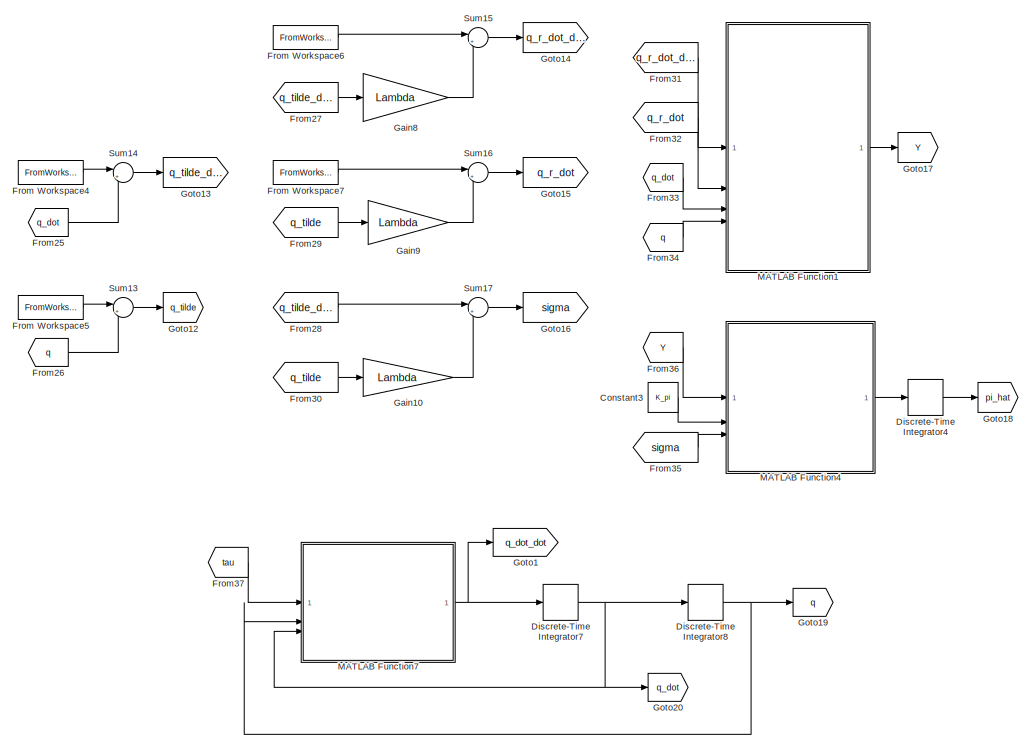
[diagram: root canvas - part 1/2, left side, full height]
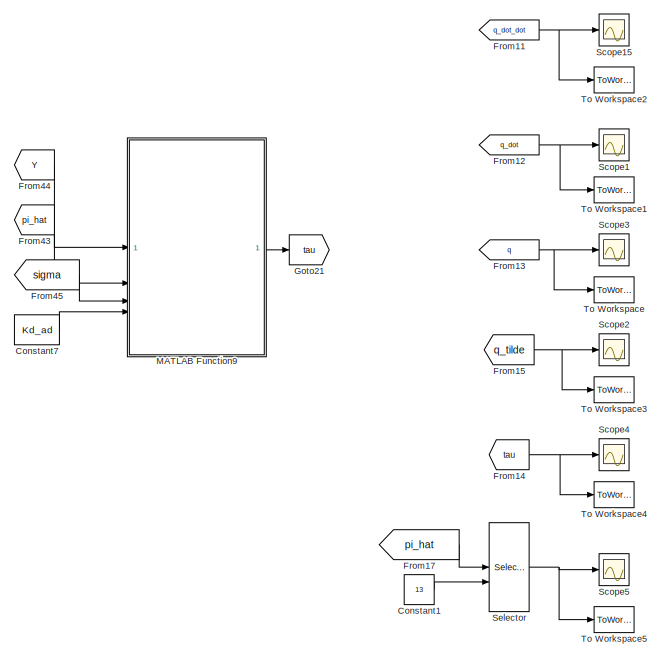
[diagram: root canvas - part 2/2, right side, full height]
MODEL slx_b1fc7efd4234
KIND model
CONFIG AbsTol = auto
CONFIG EnableMultiTasking = off
CONFIG FixedStep = auto
CONFIG MaxStep = auto
CONFIG MinStep = auto
CONFIG RelTol = 1e-3
CONFIG SampleTimeConstraint = Unconstrained
CONFIG SolverName = VariableStepAuto
CONFIG StartTime = 0.0
CONFIG StopTime = 40
BLOCK [Constant] Constant1
  Value = 13
BLOCK [Constant] Constant3
  SampleTime = T
  Value = K_pi
BLOCK [Constant] Constant7
  SampleTime = T
  Value = Kd_ad
BLOCK [DiscreteIntegrator] Discrete-Time Integrator4
  ICPrevOutput = DiscIntNeverNeededParam
  ICPrevScaledInput = DiscIntNeverNeededParam
  InitialCondition = pi_0
  InitialConditionSetting = Auto
  SampleTime = T
BLOCK [DiscreteIntegrator] Discrete-Time Integrator7
  ICPrevOutput = DiscIntNeverNeededParam
  ICPrevScaledInput = DiscIntNeverNeededParam
  InitialCondition = [0 0 0 0]'
  InitialConditionSetting = Auto
  SampleTime = -1
BLOCK [DiscreteIntegrator] Discrete-Time Integrator8
  ICPrevOutput = DiscIntNeverNeededParam
  ICPrevScaledInput = DiscIntNeverNeededParam
  InitialCondition = [theta1_0 theta2_0 -0.25 0]'
  InitialConditionSetting = Auto
  SampleTime = -1
BLOCK [FromWorkspace] From Workspace4
  SampleTime = T
  VariableName = q_d_dot
BLOCK [FromWorkspace] From Workspace5
  SampleTime = T
  VariableName = q_d
BLOCK [FromWorkspace] From Workspace6
  SampleTime = T
  VariableName = q_d_dot_dot
BLOCK [FromWorkspace] From Workspace7
  SampleTime = T
  VariableName = q_d_dot
BLOCK [From] From11
  GotoTag = q_dot_dot
BLOCK [From] From12
  GotoTag = q_dot
BLOCK [From] From13
  GotoTag = q
BLOCK [From] From14
  GotoTag = tau
BLOCK [From] From15
  GotoTag = q_tilde
BLOCK [From] From17
  GotoTag = pi_hat
BLOCK [From] From25
  GotoTag = q_dot
BLOCK [From] From26
  GotoTag = q
BLOCK [From] From27
  GotoTag = q_tilde_dot
BLOCK [From] From28
  GotoTag = q_tilde_dot
BLOCK [From] From29
  GotoTag = q_tilde
BLOCK [From] From30
  GotoTag = q_tilde
BLOCK [From] From31
  GotoTag = q_r_dot_dot
BLOCK [From] From32
  GotoTag = q_r_dot
BLOCK [From] From33
  GotoTag = q_dot
BLOCK [From] From34
  GotoTag = q
BLOCK [From] From35
  GotoTag = sigma
BLOCK [From] From36
  GotoTag = Y
BLOCK [From] From37
  GotoTag = tau
BLOCK [From] From43
  GotoTag = pi_hat
BLOCK [From] From44
  GotoTag = Y
BLOCK [From] From45
  GotoTag = sigma
BLOCK [Gain] Gain10
  Gain = Lambda
  Multiplication = Matrix(K*u)
BLOCK [Gain] Gain8
  Gain = Lambda
  Multiplication = Matrix(K*u)
BLOCK [Gain] Gain9
  Gain = Lambda
  Multiplication = Matrix(K*u)
BLOCK [Goto] Goto1
  GotoTag = q_dot_dot
BLOCK [Goto] Goto12
  GotoTag = q_tilde
BLOCK [Goto] Goto13
  GotoTag = q_tilde_dot
BLOCK [Goto] Goto14
  GotoTag = q_r_dot_dot
BLOCK [Goto] Goto15
  GotoTag = q_r_dot
BLOCK [Goto] Goto16
  GotoTag = sigma
BLOCK [Goto] Goto17
  GotoTag = Y
BLOCK [Goto] Goto18
  GotoTag = pi_hat
BLOCK [Goto] Goto19
  GotoTag = q
BLOCK [Goto] Goto20
  GotoTag = q_dot
BLOCK [Goto] Goto21
  GotoTag = tau
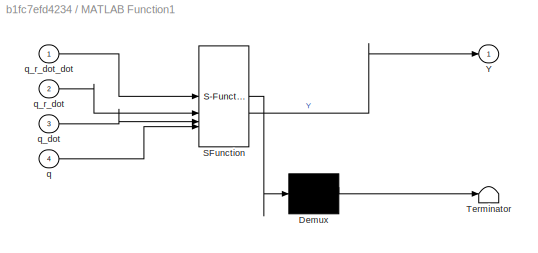
BLOCK [SubSystem] MATLAB Function1
  ErrorFcn = Stateflow.Translate.translate
  LibrarySourceBlock = simulink/User-Defined\nFunctions/MATLAB Function
  PermitHierarchicalResolution = ExplicitOnly
  SFBlockType = MATLAB Function
  TreatAsAtomicUnit = on
BLOCK [Demux] MATLAB Function1/ Demux 
  Outputs = 1
BLOCK [S-Function] MATLAB Function1/ SFunction 
  EnableBusSupport = on
  FunctionName = sf_sfun
  PortCounts = [4 2]
  SFcnIsStateOwnerBlock = off
  SFunctionDeploymentMode = off
  Tag = Stateflow S-Function 1
BLOCK [Terminator] MATLAB Function1/ Terminator 
BLOCK [Outport] MATLAB Function1/Y
BLOCK [Inport] MATLAB Function1/q
  Port = 4
BLOCK [Inport] MATLAB Function1/q_dot
  Port = 3
BLOCK [Inport] MATLAB Function1/q_r_dot
  Port = 2
BLOCK [Inport] MATLAB Function1/q_r_dot_dot
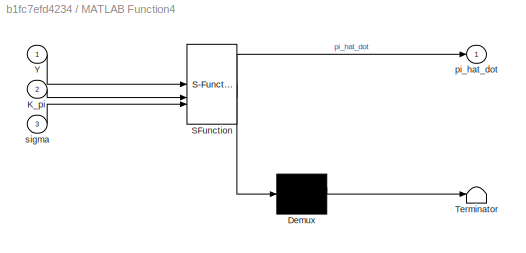
BLOCK [SubSystem] MATLAB Function4
  ErrorFcn = Stateflow.Translate.translate
  LibrarySourceBlock = simulink/User-Defined\nFunctions/MATLAB Function
  PermitHierarchicalResolution = ExplicitOnly
  SFBlockType = MATLAB Function
  TreatAsAtomicUnit = on
BLOCK [Demux] MATLAB Function4/ Demux 
  Outputs = 1
BLOCK [S-Function] MATLAB Function4/ SFunction 
  EnableBusSupport = on
  FunctionName = sf_sfun
  PortCounts = [3 2]
  SFcnIsStateOwnerBlock = off
  SFunctionDeploymentMode = off
  Tag = Stateflow S-Function 13
BLOCK [Terminator] MATLAB Function4/ Terminator 
BLOCK [Inport] MATLAB Function4/K_pi
  Port = 2
BLOCK [Inport] MATLAB Function4/Y
BLOCK [Outport] MATLAB Function4/pi_hat_dot
BLOCK [Inport] MATLAB Function4/sigma
  Port = 3
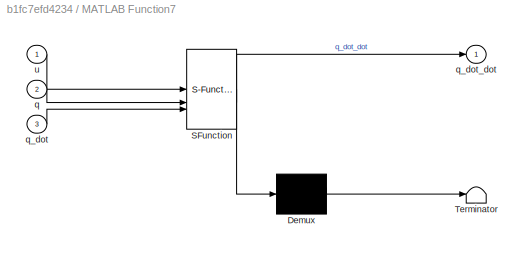
BLOCK [SubSystem] MATLAB Function7
  ErrorFcn = Stateflow.Translate.translate
  LibrarySourceBlock = simulink/User-Defined\nFunctions/MATLAB Function
  PermitHierarchicalResolution = ExplicitOnly
  SFBlockType = MATLAB Function
  TreatAsAtomicUnit = on
BLOCK [Demux] MATLAB Function7/ Demux 
  Outputs = 1
BLOCK [S-Function] MATLAB Function7/ SFunction 
  EnableBusSupport = on
  FunctionName = sf_sfun
  PortCounts = [3 2]
  SFcnIsStateOwnerBlock = off
  SFunctionDeploymentMode = off
  Tag = Stateflow S-Function 16
BLOCK [Terminator] MATLAB Function7/ Terminator 
BLOCK [Inport] MATLAB Function7/q
  Port = 2
BLOCK [Inport] MATLAB Function7/q_dot
  Port = 3
BLOCK [Outport] MATLAB Function7/q_dot_dot
BLOCK [Inport] MATLAB Function7/u
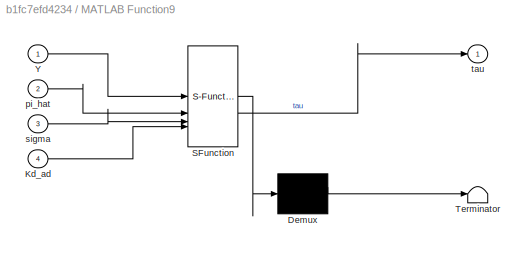
BLOCK [SubSystem] MATLAB Function9
  ErrorFcn = Stateflow.Translate.translate
  LibrarySourceBlock = simulink/User-Defined\nFunctions/MATLAB Function
  PermitHierarchicalResolution = ExplicitOnly
  SFBlockType = MATLAB Function
  TreatAsAtomicUnit = on
BLOCK [Demux] MATLAB Function9/ Demux 
  Outputs = 1
BLOCK [S-Function] MATLAB Function9/ SFunction 
  EnableBusSupport = on
  FunctionName = sf_sfun
  PortCounts = [4 2]
  SFcnIsStateOwnerBlock = off
  SFunctionDeploymentMode = off
  Tag = Stateflow S-Function 18
BLOCK [Terminator] MATLAB Function9/ Terminator 
BLOCK [Inport] MATLAB Function9/Kd_ad
  Port = 4
BLOCK [Inport] MATLAB Function9/Y
BLOCK [Inport] MATLAB Function9/pi_hat
  Port = 2
BLOCK [Inport] MATLAB Function9/sigma
  Port = 3
BLOCK [Outport] MATLAB Function9/tau
BLOCK [Scope] Scope1
  Floating = off
  NumInputPorts = 1
  ScopeSpecificationString = Simulink.scopes.TimeScopeBlockCfg('CurrentConfiguration', extmgr.ConfigurationSet(extmgr.Configuration('Core','General UI',true),extmgr.Configuration('Core','Source UI',true),extmgr.Configuration('Sources','WiredSimulink',true,'DataLoggingVariableName','ScopeData1'),extmgr.Configuration('Visuals','Time Domain',true,'SerializedDisplays',{struct('MinYLimReal','-0.81603','MaxYLimReal','1.45383','YLab...<+1501ch>
BLOCK [Scope] Scope15
  Floating = off
  NumInputPorts = 1
  ScopeSpecificationString = Simulink.scopes.TimeScopeBlockCfg('CurrentConfiguration', extmgr.ConfigurationSet(extmgr.Configuration('Core','General UI',true),extmgr.Configuration('Core','Source UI',true),extmgr.Configuration('Sources','WiredSimulink',true,'DataLoggingVariableName','ScopeData8'),extmgr.Configuration('Visuals','Time Domain',true,'SerializedDisplays',{struct('MinYLimReal','-6.41145','MaxYLimReal','5.85322','YLab...<+1445ch>
BLOCK [Scope] Scope2
  Floating = off
  NumInputPorts = 1
  ScopeSpecificationString = Simulink.scopes.TimeScopeBlockCfg('CurrentConfiguration', extmgr.ConfigurationSet(extmgr.Configuration('Core','General UI',true),extmgr.Configuration('Core','Source UI',true),extmgr.Configuration('Sources','WiredSimulink',true,'DataLoggingVariableName','ScopeData2'),extmgr.Configuration('Visuals','Time Domain',true,'SerializedDisplays',{struct('MinYLimReal','-0.00153','MaxYLimReal','0.00304','YLab...<+1421ch>
BLOCK [Scope] Scope3
  Floating = off
  NumInputPorts = 1
  ScopeSpecificationString = Simulink.scopes.TimeScopeBlockCfg('CurrentConfiguration', extmgr.ConfigurationSet(extmgr.Configuration('Core','General UI',true),extmgr.Configuration('Core','Source UI',true),extmgr.Configuration('Sources','WiredSimulink',true,'DataLoggingVariableName','ScopeData3'),extmgr.Configuration('Visuals','Time Domain',true,'SerializedDisplays',{struct('MinYLimReal','-2.18153','MaxYLimReal','8.166','YLabel...<+1493ch>
BLOCK [Scope] Scope4
  Floating = off
  NumInputPorts = 1
  ScopeSpecificationString = Simulink.scopes.TimeScopeBlockCfg('CurrentConfiguration', extmgr.ConfigurationSet(extmgr.Configuration('Core','General UI',true),extmgr.Configuration('Core','Source UI',true),extmgr.Configuration('Sources','WiredSimulink',true,'DataLoggingVariableName','ScopeData4'),extmgr.Configuration('Visuals','Time Domain',true,'SerializedDisplays',{struct('MinYLimReal','-35.01798','MaxYLimReal','112.89089','Y...<+1427ch>
BLOCK [Scope] Scope5
  Floating = off
  NumInputPorts = 1
  ScopeSpecificationString = Simulink.scopes.TimeScopeBlockCfg('CurrentConfiguration', extmgr.ConfigurationSet(extmgr.Configuration('Core','General UI',true),extmgr.Configuration('Core','Source UI',true),extmgr.Configuration('Sources','WiredSimulink',true,'DataLoggingVariableName','ScopeData5'),extmgr.Configuration('Visuals','Time Domain',true,'SerializedDisplays',{struct('MinYLimReal','-2.47271','MaxYLimReal','22.25438','YLa...<+1396ch>
BLOCK [Selector] Selector
  IndexOptions = Index vector (port)
  Indices = [1 3]
  InputPortWidth = 16
  OutputSizes = 1
BLOCK [Sum] Sum13
  Inputs = |+-
BLOCK [Sum] Sum14
  Inputs = |+-
BLOCK [Sum] Sum15
  Inputs = |++
BLOCK [Sum] Sum16
  Inputs = |++
BLOCK [Sum] Sum17
  Inputs = |++
BLOCK [ToWorkspace] To Workspace
  FixptAsFi = on
  MaxDataPoints = inf
  SampleTime = -1
  SaveFormat = Structure With Time
  VariableName = q
BLOCK [ToWorkspace] To Workspace1
  FixptAsFi = on
  MaxDataPoints = inf
  SampleTime = -1
  SaveFormat = Structure With Time
  VariableName = q_dot
BLOCK [ToWorkspace] To Workspace2
  FixptAsFi = on
  MaxDataPoints = inf
  SampleTime = -1
  SaveFormat = Structure With Time
  VariableName = q_dot_dot
BLOCK [ToWorkspace] To Workspace3
  FixptAsFi = on
  MaxDataPoints = inf
  SampleTime = -1
  SaveFormat = Structure With Time
  VariableName = q_tilde
BLOCK [ToWorkspace] To Workspace4
  FixptAsFi = on
  MaxDataPoints = inf
  SampleTime = -1
  SaveFormat = Structure With Time
  VariableName = tau
BLOCK [ToWorkspace] To Workspace5
  FixptAsFi = on
  MaxDataPoints = inf
  SampleTime = -1
  SaveFormat = Structure With Time
  VariableName = m4
LINE Constant1:1 -> Selector:2
LINE Constant3:1 -> MATLAB Function4:2
LINE Constant7:1 -> MATLAB Function9:4
LINE Discrete-Time Integrator4:1 -> Goto18:1
NET Discrete-Time Integrator7:1 -> Discrete-Time Integrator8:1, Goto20:1, MATLAB Function7:3
NET Discrete-Time Integrator8:1 -> Goto19:1, MATLAB Function7:2
LINE From Workspace4:1 -> Sum14:1
LINE From Workspace5:1 -> Sum13:1
LINE From Workspace6:1 -> Sum15:1
LINE From Workspace7:1 -> Sum16:1
NET From11:1 -> Scope15:1, To Workspace2:1
NET From12:1 -> Scope1:1, To Workspace1:1
NET From13:1 -> Scope3:1, To Workspace:1
NET From14:1 -> Scope4:1, To Workspace4:1
NET From15:1 -> Scope2:1, To Workspace3:1
LINE From17:1 -> Selector:1
LINE From25:1 -> Sum14:2
LINE From26:1 -> Sum13:2
LINE From27:1 -> Gain8:1
LINE From28:1 -> Sum17:1
LINE From29:1 -> Gain9:1
LINE From30:1 -> Gain10:1
LINE From31:1 -> MATLAB Function1:1
LINE From32:1 -> MATLAB Function1:2
LINE From33:1 -> MATLAB Function1:3
LINE From34:1 -> MATLAB Function1:4
LINE From35:1 -> MATLAB Function4:3
LINE From36:1 -> MATLAB Function4:1
LINE From37:1 -> MATLAB Function7:1
LINE From43:1 -> MATLAB Function9:2
LINE From44:1 -> MATLAB Function9:1
LINE From45:1 -> MATLAB Function9:3
LINE Gain10:1 -> Sum17:2
LINE Gain8:1 -> Sum15:2
LINE Gain9:1 -> Sum16:2
LINE MATLAB Function1:1 -> Goto17:1
LINE MATLAB Function4:1 -> Discrete-Time Integrator4:1
NET MATLAB Function7:1 -> Discrete-Time Integrator7:1, Goto1:1
LINE MATLAB Function9:1 -> Goto21:1
NET Selector:1 -> Scope5:1, To Workspace5:1
LINE Sum13:1 -> Goto12:1
LINE Sum14:1 -> Goto13:1
LINE Sum15:1 -> Goto14:1
LINE Sum16:1 -> Goto15:1
LINE Sum17:1 -> Goto16:1
note: NET lines group one-source signal fan-out (src -> all destinations, sorted); 1:1 wires keep LINE
CHART MATLAB Function1 states=1 transitions=1
  STATE_LABEL 'eML_blk_kernel()'
  STATE_LABEL 'SCRIPT:\nfunction Y = matrice_Y(q_r_dot_dot, q_r_dot, q_dot, q)\n\n    qrdd_1 = q_r_dot_dot(1);\n    qrdd_2 = q_r_dot_dot(2);\n    qrdd_3 = q_r_dot_dot(3);\n    qrdd_4 = q_r_dot_dot(4);\n    \n    qrd_1 = q_r_dot(1);\n    qrd_2 = q_r_dot(2);\n    qrd_3 = q_r_dot(3);\n    qrd_4 = q_r_dot(4);\n    \n    q1 = q(1);\n    q2 = q(2);\n    q3 = q(3);\n    q4 = q(4);\n    \n    qdot_1 = q_dot(1);\n    qdot_2 = q_dot(2);\n   ...<+2071ch>'
CHART MATLAB Function4 states=1 transitions=1
  STATE_LABEL 'eML_blk_kernel()'
  STATE_LABEL "SCRIPT:\nfunction pi_hat_dot = derivata_parametri(Y,K_pi,sigma)\n    pi_hat_dot = K_pi\\(Y'*sigma);\nend"
CHART MATLAB Function7 states=1 transitions=1
  STATE_LABEL 'eML_blk_kernel()'
  STATE_LABEL 'SCRIPT:\nfunction q_dot_dot = manipolatore(u, q, q_dot)\n\n    q1 = q(1);\n    q2 = q(2);\n    q3 = q(3);\n    q4 = q(4);\n    \n    qdot_1 = q_dot(1);\n    qdot_2 = q_dot(2);\n    qdot_3 = q_dot(3);\n    qdot_4 = q_dot(4);\n    \n    % B\n    B = [12*cos(q2) + 11763/500, 6*cos(q2) + 4883/500,  1/4, 51/50;\n         6*cos(q2) + 4883/500,             4883/500,  1/4, 51/50;\n                       1/4,             ...<+353ch>'
CHART MATLAB Function9 states=1 transitions=1
  STATE_LABEL 'eML_blk_kernel()'
  STATE_LABEL 'SCRIPT:\nfunction tau = calcolo_coppie(Y,pi_hat,sigma,Kd_ad)\n    tau = Y*pi_hat + Kd_ad*sigma;\nend'
CHART  states=0 transitions=0
CHART  states=0 transitions=0
CHART  states=0 transitions=0
CHART  states=0 transitions=0
